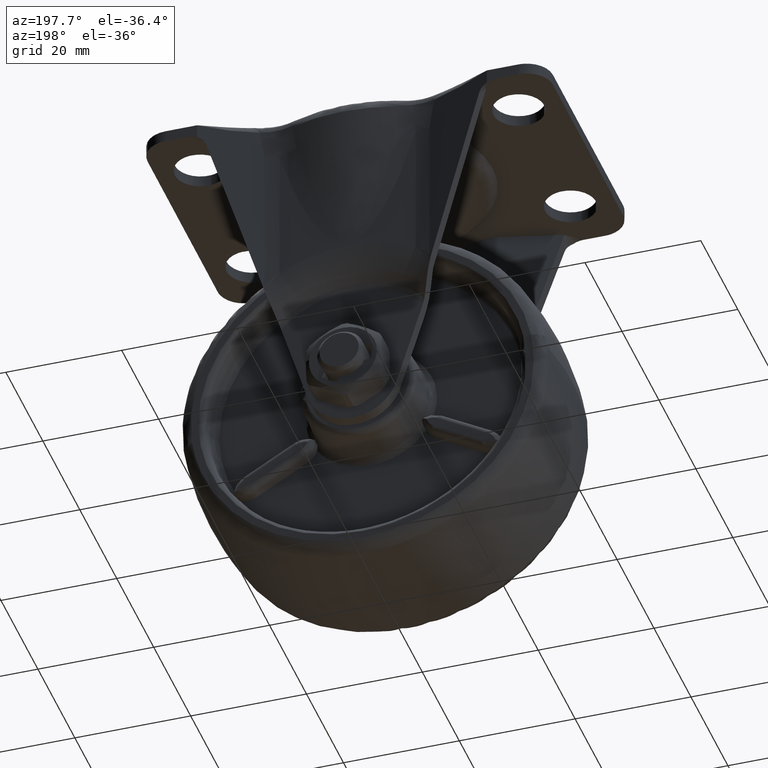
[diagram: clean part render]
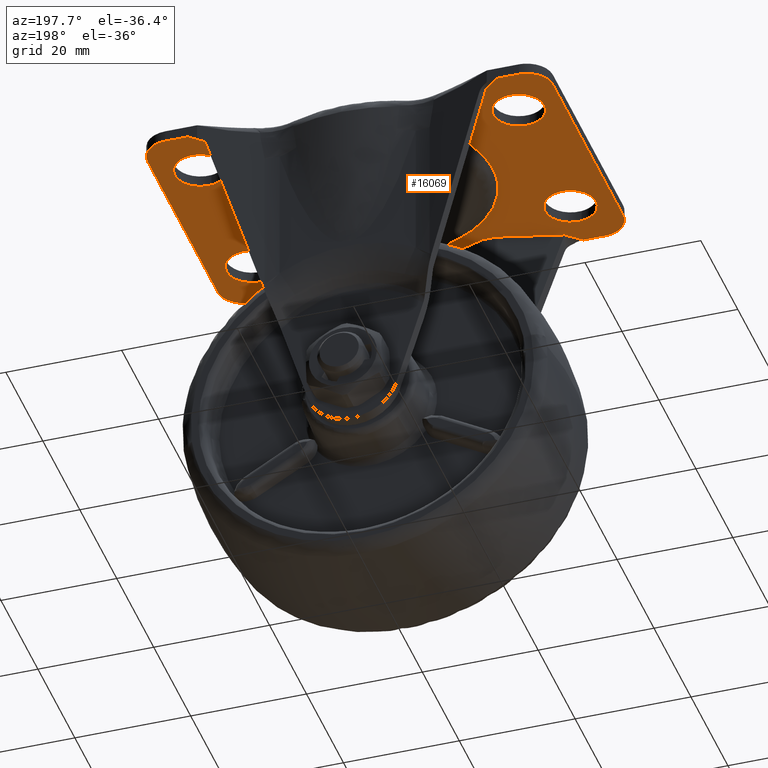
[diagram: same view with one face highlighted and labeled with its STEP entity id]
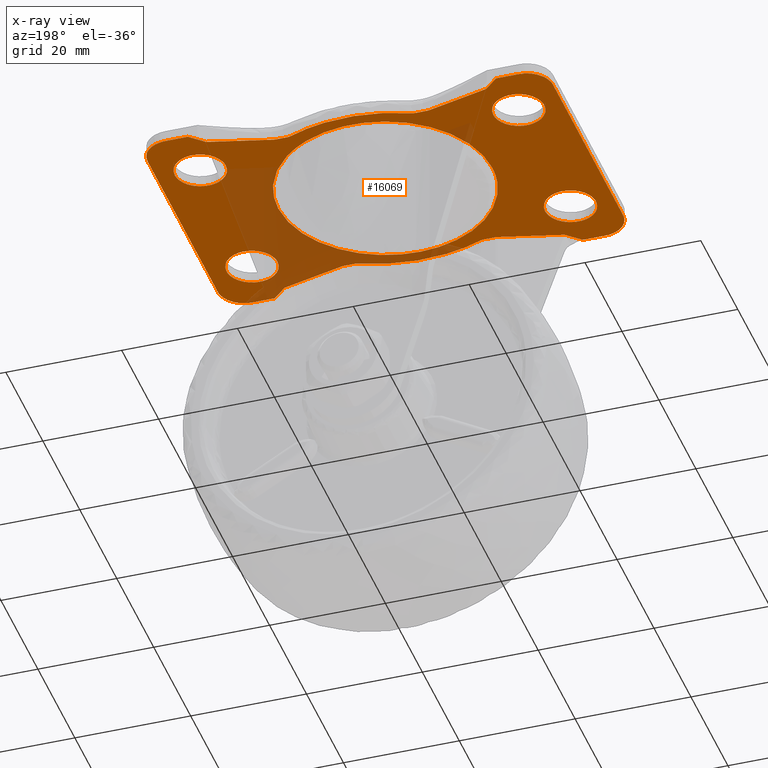
[diagram: x-ray of the same camera — body ghosted, the highlighted face saturated]
A machine part, auxiliary view. The second image highlights one B-rep face of the part: STEP entity #16069.
The next image is the same camera in x-ray: the body ghosted, the highlighted face saturated — about 24% of this face is hidden behind the body in this view.
In plain terms, the highlighted face is a freeform B-spline surface patch.
Its self-contained STEP definition (entity closure, byte-faithful):
#7227=CARTESIAN_POINT('',(-28.019350644347199,9.630757984705339,50.500000000000000));
#7228=VERTEX_POINT('',#7227);
#7229=CARTESIAN_POINT('',(-23.099999900000000,14.0,50.500000000000000));
#7230=VERTEX_POINT('',#7229);
#7231=CARTESIAN_POINT('',(-28.019350644347202,9.630757984705339,50.500000000000000));
#7232=CARTESIAN_POINT('',(-27.760586132445436,9.599999900000000,50.500000000000007));
#7233=CARTESIAN_POINT('',(-27.500000000000000,9.599999900000000,50.500000000000000));
#7234=CARTESIAN_POINT('',(-23.099999900000004,9.599999900000000,50.500000000000000));
#7235=CARTESIAN_POINT('',(-23.099999900000000,14.0,50.500000000000000));
#7243=(BOUNDED_CURVE()B_SPLINE_CURVE(2,(#7231,#7232,#7233,#7234,#7235),.UNSPECIFIED.,.F.,.U.)B_SPLINE_CURVE_WITH_KNOTS((3,2,3),(0.229562473511464,0.250000000000000,0.500000000000000),.UNSPECIFIED.)CURVE()GEOMETRIC_REPRESENTATION_ITEM()RATIONAL_B_SPLINE_CURVE((0.956026754179691,0.976055948328749,1.0,0.707106781186547,1.0))REPRESENTATION_ITEM(''));
#7244=EDGE_CURVE('',#7228,#7230,#7243,.T.);
#7285=CARTESIAN_POINT('',(-27.231386419819021,18.391793212862190,50.500000000000000));
#7286=VERTEX_POINT('',#7285);
#7292=CARTESIAN_POINT('',(-23.099999900000000,14.0,50.500000000000000));
#7293=CARTESIAN_POINT('',(-23.099999900000011,18.139106788223827,50.499999999999993));
#7294=CARTESIAN_POINT('',(-27.231386419819014,18.391793212862186,50.500000000000007));
#7302=(BOUNDED_CURVE()B_SPLINE_CURVE(2,(#7292,#7293,#7294),.UNSPECIFIED.,.F.,.U.)B_SPLINE_CURVE_WITH_KNOTS((3,3),(0.500000000000000,0.739332962232321),.UNSPECIFIED.)CURVE()GEOMETRIC_REPRESENTATION_ITEM()RATIONAL_B_SPLINE_CURVE((1.0,0.719603993294468,0.976072041652527))REPRESENTATION_ITEM(''));
#7303=EDGE_CURVE('',#7230,#7286,#7302,.T.);
#7326=CARTESIAN_POINT('',(-31.900000100000000,14.0,50.500000000000000));
#7327=VERTEX_POINT('',#7326);
#7328=CARTESIAN_POINT('',(-31.900000100000000,14.0,50.500000000000000));
#7329=CARTESIAN_POINT('',(-31.900000100000003,10.092031997093882,50.500000000000007));
#7330=CARTESIAN_POINT('',(-28.019350644347206,9.630757984705339,50.500000000000000));
#7338=(BOUNDED_CURVE()B_SPLINE_CURVE(2,(#7328,#7329,#7330),.UNSPECIFIED.,.F.,.U.)B_SPLINE_CURVE_WITH_KNOTS((3,3),(0.0,0.229562473511464),.UNSPECIFIED.)CURVE()GEOMETRIC_REPRESENTATION_ITEM()RATIONAL_B_SPLINE_CURVE((1.0,0.731050832857798,0.956026754179692))REPRESENTATION_ITEM(''));
#7339=EDGE_CURVE('',#7327,#7228,#7338,.T.);
#7341=CARTESIAN_POINT('',(-27.231386419819014,18.391793212862186,50.499999999999993));
#7342=CARTESIAN_POINT('',(-27.365567838307832,18.400000100000007,50.500000000000000));
#7343=CARTESIAN_POINT('',(-27.500000000000000,18.400000100000000,50.500000000000000));
#7344=CARTESIAN_POINT('',(-31.900000099999996,18.400000100000000,50.500000000000000));
#7345=CARTESIAN_POINT('',(-31.900000100000000,14.0,50.500000000000000));
#7353=(BOUNDED_CURVE()B_SPLINE_CURVE(2,(#7341,#7342,#7343,#7344,#7345),.UNSPECIFIED.,.F.,.U.)B_SPLINE_CURVE_WITH_KNOTS((3,2,3),(0.739332962232322,0.750000000000000,1.0),.UNSPECIFIED.)CURVE()GEOMETRIC_REPRESENTATION_ITEM()RATIONAL_B_SPLINE_CURVE((0.976072041652528,0.987502787892081,1.0,0.707106781186547,1.0))REPRESENTATION_ITEM(''));
#7354=EDGE_CURVE('',#7286,#7327,#7353,.T.);
#7413=CARTESIAN_POINT('',(-28.019350644347199,-18.369242015294660,50.500000000000000));
#7414=VERTEX_POINT('',#7413);
#7415=CARTESIAN_POINT('',(-23.099999900000000,-14.0,50.500000000000000));
#7416=VERTEX_POINT('',#7415);
#7417=CARTESIAN_POINT('',(-28.019350644347202,-18.369242015294663,50.500000000000000));
#7418=CARTESIAN_POINT('',(-27.760586132445436,-18.400000099999996,50.500000000000007));
#7419=CARTESIAN_POINT('',(-27.500000000000000,-18.400000100000000,50.500000000000000));
#7420=CARTESIAN_POINT('',(-23.099999900000004,-18.400000100000000,50.500000000000000));
#7421=CARTESIAN_POINT('',(-23.099999900000000,-14.0,50.500000000000000));
#7429=(BOUNDED_CURVE()B_SPLINE_CURVE(2,(#7417,#7418,#7419,#7420,#7421),.UNSPECIFIED.,.F.,.U.)B_SPLINE_CURVE_WITH_KNOTS((3,2,3),(0.229562473511464,0.250000000000000,0.500000000000000),.UNSPECIFIED.)CURVE()GEOMETRIC_REPRESENTATION_ITEM()RATIONAL_B_SPLINE_CURVE((0.956026754179691,0.976055948328749,1.0,0.707106781186547,1.0))REPRESENTATION_ITEM(''));
#7430=EDGE_CURVE('',#7414,#7416,#7429,.T.);
#7471=CARTESIAN_POINT('',(-27.231386419819021,-9.608206787137814,50.500000000000000));
#7472=VERTEX_POINT('',#7471);
#7478=CARTESIAN_POINT('',(-23.099999900000000,-14.0,50.500000000000000));
#7479=CARTESIAN_POINT('',(-23.099999900000011,-9.860893211776180,50.499999999999993));
#7480=CARTESIAN_POINT('',(-27.231386419819014,-9.608206787137814,50.500000000000007));
#7488=(BOUNDED_CURVE()B_SPLINE_CURVE(2,(#7478,#7479,#7480),.UNSPECIFIED.,.F.,.U.)B_SPLINE_CURVE_WITH_KNOTS((3,3),(0.500000000000000,0.739332962232321),.UNSPECIFIED.)CURVE()GEOMETRIC_REPRESENTATION_ITEM()RATIONAL_B_SPLINE_CURVE((1.0,0.719603993294468,0.976072041652527))REPRESENTATION_ITEM(''));
#7489=EDGE_CURVE('',#7416,#7472,#7488,.T.);
#7512=CARTESIAN_POINT('',(-31.900000100000000,-14.0,50.500000000000000));
#7513=VERTEX_POINT('',#7512);
#7514=CARTESIAN_POINT('',(-31.900000100000000,-14.0,50.500000000000000));
#7515=CARTESIAN_POINT('',(-31.900000100000003,-17.907968002906127,50.500000000000007));
#7516=CARTESIAN_POINT('',(-28.019350644347206,-18.369242015294670,50.500000000000000));
#7524=(BOUNDED_CURVE()B_SPLINE_CURVE(2,(#7514,#7515,#7516),.UNSPECIFIED.,.F.,.U.)B_SPLINE_CURVE_WITH_KNOTS((3,3),(0.0,0.229562473511464),.UNSPECIFIED.)CURVE()GEOMETRIC_REPRESENTATION_ITEM()RATIONAL_B_SPLINE_CURVE((1.0,0.731050832857798,0.956026754179692))REPRESENTATION_ITEM(''));
#7525=EDGE_CURVE('',#7513,#7414,#7524,.T.);
#7527=CARTESIAN_POINT('',(-27.231386419819014,-9.608206787137814,50.499999999999993));
#7528=CARTESIAN_POINT('',(-27.365567838307832,-9.599999900000002,50.500000000000000));
#7529=CARTESIAN_POINT('',(-27.500000000000000,-9.599999900000000,50.500000000000000));
#7530=CARTESIAN_POINT('',(-31.900000099999996,-9.599999900000000,50.500000000000000));
#7531=CARTESIAN_POINT('',(-31.900000100000000,-14.0,50.500000000000000));
#7539=(BOUNDED_CURVE()B_SPLINE_CURVE(2,(#7527,#7528,#7529,#7530,#7531),.UNSPECIFIED.,.F.,.U.)B_SPLINE_CURVE_WITH_KNOTS((3,2,3),(0.739332962232322,0.750000000000000,1.0),.UNSPECIFIED.)CURVE()GEOMETRIC_REPRESENTATION_ITEM()RATIONAL_B_SPLINE_CURVE((0.976072041652528,0.987502787892081,1.0,0.707106781186547,1.0))REPRESENTATION_ITEM(''));
#7540=EDGE_CURVE('',#7472,#7513,#7539,.T.);
#7599=CARTESIAN_POINT('',(26.980649355652801,9.630757984705339,50.500000000000000));
#7600=VERTEX_POINT('',#7599);
#7601=CARTESIAN_POINT('',(31.900000100000000,14.0,50.500000000000000));
#7602=VERTEX_POINT('',#7601);
#7603=CARTESIAN_POINT('',(26.980649355652798,9.630757984705339,50.500000000000007));
#7604=CARTESIAN_POINT('',(27.239413867554568,9.599999900000002,50.500000000000000));
#7605=CARTESIAN_POINT('',(27.500000000000000,9.599999900000000,50.500000000000000));
#7606=CARTESIAN_POINT('',(31.900000099999996,9.599999900000000,50.500000000000000));
#7607=CARTESIAN_POINT('',(31.900000100000000,14.0,50.500000000000000));
#7615=(BOUNDED_CURVE()B_SPLINE_CURVE(2,(#7603,#7604,#7605,#7606,#7607),.UNSPECIFIED.,.F.,.U.)B_SPLINE_CURVE_WITH_KNOTS((3,2,3),(0.229562473511464,0.250000000000000,0.500000000000000),.UNSPECIFIED.)CURVE()GEOMETRIC_REPRESENTATION_ITEM()RATIONAL_B_SPLINE_CURVE((0.956026754179691,0.976055948328749,1.0,0.707106781186547,1.0))REPRESENTATION_ITEM(''));
#7616=EDGE_CURVE('',#7600,#7602,#7615,.T.);
#7657=CARTESIAN_POINT('',(27.768613580180990,18.391793212862190,50.500000000000000));
#7658=VERTEX_POINT('',#7657);
#7664=CARTESIAN_POINT('',(31.900000100000000,14.0,50.500000000000000));
#7665=CARTESIAN_POINT('',(31.900000099999993,18.139106788223827,50.499999999999993));
#7666=CARTESIAN_POINT('',(27.768613580180990,18.391793212862186,50.500000000000007));
#7674=(BOUNDED_CURVE()B_SPLINE_CURVE(2,(#7664,#7665,#7666),.UNSPECIFIED.,.F.,.U.)B_SPLINE_CURVE_WITH_KNOTS((3,3),(0.500000000000000,0.739332962232321),.UNSPECIFIED.)CURVE()GEOMETRIC_REPRESENTATION_ITEM()RATIONAL_B_SPLINE_CURVE((1.0,0.719603993294468,0.976072041652527))REPRESENTATION_ITEM(''));
#7675=EDGE_CURVE('',#7602,#7658,#7674,.T.);
#7698=CARTESIAN_POINT('',(23.099999900000000,14.0,50.500000000000000));
#7699=VERTEX_POINT('',#7698);
#7700=CARTESIAN_POINT('',(23.099999900000000,14.0,50.500000000000000));
#7701=CARTESIAN_POINT('',(23.099999900000004,10.092031997093889,50.500000000000014));
#7702=CARTESIAN_POINT('',(26.980649355652794,9.630757984705339,50.500000000000000));
#7710=(BOUNDED_CURVE()B_SPLINE_CURVE(2,(#7700,#7701,#7702),.UNSPECIFIED.,.F.,.U.)B_SPLINE_CURVE_WITH_KNOTS((3,3),(0.0,0.229562473511463),.UNSPECIFIED.)CURVE()GEOMETRIC_REPRESENTATION_ITEM()RATIONAL_B_SPLINE_CURVE((1.0,0.731050832857798,0.956026754179691))REPRESENTATION_ITEM(''));
#7711=EDGE_CURVE('',#7699,#7600,#7710,.T.);
#7713=CARTESIAN_POINT('',(27.768613580180990,18.391793212862183,50.500000000000000));
#7714=CARTESIAN_POINT('',(27.634432161692168,18.400000100000000,50.500000000000000));
#7715=CARTESIAN_POINT('',(27.500000000000000,18.400000100000000,50.500000000000000));
#7716=CARTESIAN_POINT('',(23.099999900000004,18.400000100000000,50.500000000000000));
#7717=CARTESIAN_POINT('',(23.099999900000000,14.0,50.500000000000000));
#7725=(BOUNDED_CURVE()B_SPLINE_CURVE(2,(#7713,#7714,#7715,#7716,#7717),.UNSPECIFIED.,.F.,.U.)B_SPLINE_CURVE_WITH_KNOTS((3,2,3),(0.739332962232322,0.750000000000000,1.0),.UNSPECIFIED.)CURVE()GEOMETRIC_REPRESENTATION_ITEM()RATIONAL_B_SPLINE_CURVE((0.976072041652528,0.987502787892081,1.0,0.707106781186547,1.0))REPRESENTATION_ITEM(''));
#7726=EDGE_CURVE('',#7658,#7699,#7725,.T.);
#7785=CARTESIAN_POINT('',(26.980649355652801,-18.369242015294660,50.500000000000000));
#7786=VERTEX_POINT('',#7785);
#7787=CARTESIAN_POINT('',(31.900000100000000,-14.0,50.500000000000000));
#7788=VERTEX_POINT('',#7787);
#7789=CARTESIAN_POINT('',(26.980649355652798,-18.369242015294667,50.500000000000007));
#7790=CARTESIAN_POINT('',(27.239413867554568,-18.400000099999996,50.500000000000000));
#7791=CARTESIAN_POINT('',(27.500000000000000,-18.400000100000000,50.500000000000000));
#7792=CARTESIAN_POINT('',(31.900000099999996,-18.400000100000000,50.500000000000000));
#7793=CARTESIAN_POINT('',(31.900000100000000,-14.0,50.500000000000000));
#7801=(BOUNDED_CURVE()B_SPLINE_CURVE(2,(#7789,#7790,#7791,#7792,#7793),.UNSPECIFIED.,.F.,.U.)B_SPLINE_CURVE_WITH_KNOTS((3,2,3),(0.229562473511464,0.250000000000000,0.500000000000000),.UNSPECIFIED.)CURVE()GEOMETRIC_REPRESENTATION_ITEM()RATIONAL_B_SPLINE_CURVE((0.956026754179691,0.976055948328749,1.0,0.707106781186547,1.0))REPRESENTATION_ITEM(''));
#7802=EDGE_CURVE('',#7786,#7788,#7801,.T.);
#7843=CARTESIAN_POINT('',(27.768613580180990,-9.608206787137814,50.500000000000000));
#7844=VERTEX_POINT('',#7843);
#7850=CARTESIAN_POINT('',(31.900000100000000,-14.0,50.500000000000000));
#7851=CARTESIAN_POINT('',(31.900000099999993,-9.860893211776180,50.499999999999993));
#7852=CARTESIAN_POINT('',(27.768613580180990,-9.608206787137814,50.500000000000007));
#7860=(BOUNDED_CURVE()B_SPLINE_CURVE(2,(#7850,#7851,#7852),.UNSPECIFIED.,.F.,.U.)B_SPLINE_CURVE_WITH_KNOTS((3,3),(0.500000000000000,0.739332962232321),.UNSPECIFIED.)CURVE()GEOMETRIC_REPRESENTATION_ITEM()RATIONAL_B_SPLINE_CURVE((1.0,0.719603993294468,0.976072041652527))REPRESENTATION_ITEM(''));
#7861=EDGE_CURVE('',#7788,#7844,#7860,.T.);
#7884=CARTESIAN_POINT('',(23.099999900000000,-14.0,50.500000000000000));
#7885=VERTEX_POINT('',#7884);
#7886=CARTESIAN_POINT('',(23.099999900000000,-14.0,50.500000000000000));
#7887=CARTESIAN_POINT('',(23.099999900000004,-17.907968002906120,50.500000000000014));
#7888=CARTESIAN_POINT('',(26.980649355652794,-18.369242015294663,50.500000000000000));
#7896=(BOUNDED_CURVE()B_SPLINE_CURVE(2,(#7886,#7887,#7888),.UNSPECIFIED.,.F.,.U.)B_SPLINE_CURVE_WITH_KNOTS((3,3),(0.0,0.229562473511463),.UNSPECIFIED.)CURVE()GEOMETRIC_REPRESENTATION_ITEM()RATIONAL_B_SPLINE_CURVE((1.0,0.731050832857798,0.956026754179691))REPRESENTATION_ITEM(''));
#7897=EDGE_CURVE('',#7885,#7786,#7896,.T.);
#7899=CARTESIAN_POINT('',(27.768613580180993,-9.608206787137814,50.500000000000000));
#7900=CARTESIAN_POINT('',(27.634432161692175,-9.599999900000000,50.500000000000007));
#7901=CARTESIAN_POINT('',(27.500000000000000,-9.599999900000000,50.500000000000000));
#7902=CARTESIAN_POINT('',(23.099999900000004,-9.599999900000000,50.500000000000000));
#7903=CARTESIAN_POINT('',(23.099999900000000,-14.0,50.500000000000000));
#7911=(BOUNDED_CURVE()B_SPLINE_CURVE(2,(#7899,#7900,#7901,#7902,#7903),.UNSPECIFIED.,.F.,.U.)B_SPLINE_CURVE_WITH_KNOTS((3,2,3),(0.739332962232322,0.750000000000000,1.0),.UNSPECIFIED.)CURVE()GEOMETRIC_REPRESENTATION_ITEM()RATIONAL_B_SPLINE_CURVE((0.976072041652528,0.987502787892081,1.0,0.707106781186547,1.0))REPRESENTATION_ITEM(''));
#7912=EDGE_CURVE('',#7844,#7885,#7911,.T.);
#9151=CARTESIAN_POINT('',(12.699478415290200,13.452629779234909,50.499999999912767));
#9152=VERTEX_POINT('',#9151);
#9166=CARTESIAN_POINT('',(18.500000000000000,-3.549170E-015,50.500000000000000));
#9167=VERTEX_POINT('',#9166);
#9168=CARTESIAN_POINT('',(12.699478415290196,13.452629779234904,50.499999999912774));
#9169=CARTESIAN_POINT('',(18.500000000000004,7.976852933361195,50.500000000000007));
#9170=CARTESIAN_POINT('',(18.500000000000000,-3.549170E-015,50.500000000000000));
#9178=(BOUNDED_CURVE()B_SPLINE_CURVE(2,(#9168,#9169,#9170),.UNSPECIFIED.,.F.,.U.)B_SPLINE_CURVE_WITH_KNOTS((3,3),(0.370655485560253,0.500000000000000),.UNSPECIFIED.)CURVE()GEOMETRIC_REPRESENTATION_ITEM()RATIONAL_B_SPLINE_CURVE((0.853730296276505,0.848463475319518,1.0))REPRESENTATION_ITEM(''));
#9179=EDGE_CURVE('',#9152,#9167,#9178,.T.);
#9181=CARTESIAN_POINT('',(-18.500000000000000,-3.549170E-015,50.500000000000000));
#9182=VERTEX_POINT('',#9181);
#9183=CARTESIAN_POINT('',(18.500000000000000,-3.549170E-015,50.500000000000000));
#9184=CARTESIAN_POINT('',(18.500000000000000,-18.500000000000000,50.499999999999993));
#9185=CARTESIAN_POINT('',(0.0,-18.500000000000000,50.500000000000000));
#9186=CARTESIAN_POINT('',(-18.500000000000000,-18.500000000000000,50.499999999999993));
#9187=CARTESIAN_POINT('',(-18.500000000000000,-3.549170E-015,50.500000000000000));
#9195=(BOUNDED_CURVE()B_SPLINE_CURVE(2,(#9183,#9184,#9185,#9186,#9187),.UNSPECIFIED.,.F.,.U.)B_SPLINE_CURVE_WITH_KNOTS((3,2,3),(0.500000000000000,0.750000000000000,1.0),.UNSPECIFIED.)CURVE()GEOMETRIC_REPRESENTATION_ITEM()RATIONAL_B_SPLINE_CURVE((1.0,0.707106781186548,1.0,0.707106781186548,1.0))REPRESENTATION_ITEM(''));
#9196=EDGE_CURVE('',#9167,#9182,#9195,.T.);
#9198=CARTESIAN_POINT('',(-14.828989219849181,11.061242186404201,50.499999999592490));
#9199=VERTEX_POINT('',#9198);
#9200=CARTESIAN_POINT('',(-18.500000000000000,-3.549170E-015,50.500000000000000));
#9201=CARTESIAN_POINT('',(-18.500000000000004,6.139789571806519,50.500000000000000));
#9202=CARTESIAN_POINT('',(-14.828989219849179,11.061242186404204,50.499999999592490));
#9210=(BOUNDED_CURVE()B_SPLINE_CURVE(2,(#9200,#9201,#9202),.UNSPECIFIED.,.F.,.U.)B_SPLINE_CURVE_WITH_KNOTS((3,3),(0.0,0.103156604495588),.UNSPECIFIED.)CURVE()GEOMETRIC_REPRESENTATION_ITEM()RATIONAL_B_SPLINE_CURVE((1.0,0.879144520269684,0.858025367928686))REPRESENTATION_ITEM(''));
#9211=EDGE_CURVE('',#9182,#9199,#9210,.T.);
#9300=CARTESIAN_POINT('',(-14.828989219849179,11.061242186404204,50.499999999592490));
#9301=CARTESIAN_POINT('',(-9.280269713959836,18.499999999999996,50.500000000000000));
#9302=CARTESIAN_POINT('',(0.0,18.500000000000000,50.500000000000000));
#9303=CARTESIAN_POINT('',(7.352770407525324,18.500000000000004,50.500000000000000));
#9304=CARTESIAN_POINT('',(12.699478415290196,13.452629779234904,50.499999999912774));
#9312=(BOUNDED_CURVE()B_SPLINE_CURVE(2,(#9300,#9301,#9302,#9303,#9304),.UNSPECIFIED.,.F.,.U.)B_SPLINE_CURVE_WITH_KNOTS((3,2,3),(0.103156604495588,0.250000000000000,0.370655485560254),.UNSPECIFIED.)CURVE()GEOMETRIC_REPRESENTATION_ITEM()RATIONAL_B_SPLINE_CURVE((0.858025367928686,0.827962260916863,1.0,0.858643305867029,0.853730296276505))REPRESENTATION_ITEM(''));
#9313=EDGE_CURVE('',#9199,#9152,#9312,.T.);
#9411=CARTESIAN_POINT('',(-10.324252689177060,-18.575363279753098,50.500000000000000));
#9412=VERTEX_POINT('',#9411);
#9413=CARTESIAN_POINT('',(-11.147902669042900,-18.406240285580949,50.500000000000000));
#9414=VERTEX_POINT('',#9413);
#9415=CARTESIAN_POINT('',(-10.324252689177060,-18.575363279753098,50.500000000000000));
#9416=CARTESIAN_POINT('',(-10.454943470160620,-18.519219030960031,50.500000000000007));
#9417=CARTESIAN_POINT('',(-10.589086307833011,-18.477358420331321,50.500000000000007));
#9418=CARTESIAN_POINT('',(-10.795231024361280,-18.434968359082511,50.500000000000007));
#9419=CARTESIAN_POINT('',(-10.864774529348180,-18.424266849894821,50.500000000000007));
#9420=CARTESIAN_POINT('',(-11.005558631860330,-18.409885922387140,50.500000000000007));
#9421=CARTESIAN_POINT('',(-11.076789628579920,-18.406240285580949,50.500000000000007));
#9422=CARTESIAN_POINT('',(-11.147902669042900,-18.406240285580949,50.500000000000000));
#9423=B_SPLINE_CURVE_WITH_KNOTS('',3,(#9415,#9416,#9417,#9418,#9419,#9420,#9421,#9422),.UNSPECIFIED.,.F.,.U.,(4,2,2,4),(0.0,0.500000000000001,0.750000000000001,1.0),.UNSPECIFIED.);
#9424=EDGE_CURVE('',#9412,#9414,#9423,.T.);
#9426=CARTESIAN_POINT('',(10.324252689177060,-18.575363279753098,50.500000000000000));
#9427=VERTEX_POINT('',#9426);
#9441=CARTESIAN_POINT('',(11.147902669042900,-18.406240285580949,50.500000000000000));
#9442=VERTEX_POINT('',#9441);
#9443=CARTESIAN_POINT('',(11.147902669042900,-18.406240285580949,50.500000000000000));
#9444=CARTESIAN_POINT('',(11.005662561606639,-18.406240285580949,50.500000000000021));
#9445=CARTESIAN_POINT('',(10.865865188238191,-18.420577739270211,50.499999999999993));
#9446=CARTESIAN_POINT('',(10.659694103352001,-18.462773510566780,50.500000000000000));
#9447=CARTESIAN_POINT('',(10.591562681261451,-18.480315071115399,50.500000000000000));
#9448=CARTESIAN_POINT('',(10.456519067832181,-18.522554380301671,50.499999999999993));
#9449=CARTESIAN_POINT('',(10.389602791073610,-18.547289131355491,50.499999999999993));
#9450=CARTESIAN_POINT('',(10.324252689177079,-18.575363279753098,50.500000000000000));
#9451=B_SPLINE_CURVE_WITH_KNOTS('',3,(#9443,#9444,#9445,#9446,#9447,#9448,#9449,#9450),.UNSPECIFIED.,.F.,.U.,(4,2,2,4),(0.0,0.500000000000003,0.750000000000001,1.0),.UNSPECIFIED.);
#9452=EDGE_CURVE('',#9442,#9427,#9451,.T.);
#9484=CARTESIAN_POINT('',(-13.020022977027621,-18.406240285580949,50.500000000000000));
#9485=VERTEX_POINT('',#9484);
#9486=CARTESIAN_POINT('',(-13.520108598479640,-18.469770721860151,50.500000000000000));
#9487=VERTEX_POINT('',#9486);
#9488=CARTESIAN_POINT('',(-13.020022977027621,-18.406240285580949,50.500000000000000));
#9489=CARTESIAN_POINT('',(-13.274101213049507,-18.406240285580957,50.500000000000000));
#9490=CARTESIAN_POINT('',(-13.520108598479631,-18.469770721860169,50.500000000000000));
#9498=(BOUNDED_CURVE()B_SPLINE_CURVE(2,(#9488,#9489,#9490),.UNSPECIFIED.,.F.,.U.)CURVE()GEOMETRIC_REPRESENTATION_ITEM()QUASI_UNIFORM_CURVE()RATIONAL_B_SPLINE_CURVE((1.0,0.992026910386102,1.0))REPRESENTATION_ITEM(''));
#9499=EDGE_CURVE('',#9485,#9487,#9498,.T.);
#9860=CARTESIAN_POINT('',(13.520108598479640,-18.469770721860151,50.500000000000000));
#9861=VERTEX_POINT('',#9860);
#9862=CARTESIAN_POINT('',(13.020022977027621,-18.406240285580949,50.500000000000000));
#9863=VERTEX_POINT('',#9862);
#9864=CARTESIAN_POINT('',(13.520108598479631,-18.469770721860169,50.500000000000000));
#9865=CARTESIAN_POINT('',(13.274101213049505,-18.406240285580953,50.500000000000000));
#9866=CARTESIAN_POINT('',(13.020022977027621,-18.406240285580949,50.500000000000000));
#9874=(BOUNDED_CURVE()B_SPLINE_CURVE(2,(#9864,#9865,#9866),.UNSPECIFIED.,.F.,.U.)CURVE()GEOMETRIC_REPRESENTATION_ITEM()QUASI_UNIFORM_CURVE()RATIONAL_B_SPLINE_CURVE((1.0,0.992026910386102,1.0))REPRESENTATION_ITEM(''));
#9875=EDGE_CURVE('',#9861,#9863,#9874,.T.);
#10198=CARTESIAN_POINT('',(10.324252689177101,18.575363279753049,50.500000000000000));
#10199=VERTEX_POINT('',#10198);
#10200=CARTESIAN_POINT('',(11.147902669042940,18.406240285580949,50.500000000000000));
#10201=VERTEX_POINT('',#10200);
#10202=CARTESIAN_POINT('',(10.324252689177060,18.575363279753098,50.500000000000000));
#10203=CARTESIAN_POINT('',(10.454943470160609,18.519219030960020,50.500000000000000));
#10204=CARTESIAN_POINT('',(10.589086307833041,18.477358420331282,50.499999999999993));
#10205=CARTESIAN_POINT('',(10.795231024361319,18.434968359082468,50.500000000000000));
#10206=CARTESIAN_POINT('',(10.864774529348219,18.424266849894789,50.500000000000000));
#10207=CARTESIAN_POINT('',(11.005558631860380,18.409885922387090,50.499999999999993));
#10208=CARTESIAN_POINT('',(11.076789628579959,18.406240285580900,50.500000000000000));
#10209=CARTESIAN_POINT('',(11.147902669042940,18.406240285580900,50.500000000000000));
#10210=B_SPLINE_CURVE_WITH_KNOTS('',3,(#10202,#10203,#10204,#10205,#10206,#10207,#10208,#10209),.UNSPECIFIED.,.F.,.U.,(4,2,2,4),(0.0,0.500000000000000,0.750000000000000,1.0),.UNSPECIFIED.);
#10211=EDGE_CURVE('',#10199,#10201,#10210,.T.);
#10213=CARTESIAN_POINT('',(-10.324252689177101,18.575363279753049,50.500000000000000));
#10214=VERTEX_POINT('',#10213);
#10228=CARTESIAN_POINT('',(-11.147902669042940,18.406240285580949,50.500000000000000));
#10229=VERTEX_POINT('',#10228);
#10230=CARTESIAN_POINT('',(-11.147902669042940,18.406240285580949,50.500000000000000));
#10231=CARTESIAN_POINT('',(-11.005662561606680,18.406240285580960,50.500000000000007));
#10232=CARTESIAN_POINT('',(-10.865865188238230,18.420577739270179,50.500000000000007));
#10233=CARTESIAN_POINT('',(-10.659694103352040,18.462773510566759,50.500000000000007));
#10234=CARTESIAN_POINT('',(-10.591562681261490,18.480315071115371,50.500000000000007));
#10235=CARTESIAN_POINT('',(-10.456519067832231,18.522554380301649,50.500000000000007));
#10236=CARTESIAN_POINT('',(-10.389602791073610,18.547289131355502,50.500000000000007));
#10237=CARTESIAN_POINT('',(-10.324252689177079,18.575363279753098,50.500000000000000));
#10238=B_SPLINE_CURVE_WITH_KNOTS('',3,(#10230,#10231,#10232,#10233,#10234,#10235,#10236,#10237),.UNSPECIFIED.,.F.,.U.,(4,2,2,4),(0.0,0.500000000000001,0.750000000000001,1.0),.UNSPECIFIED.);
#10239=EDGE_CURVE('',#10229,#10214,#10238,.T.);
#10441=CARTESIAN_POINT('',(13.020022977027599,18.406240285580949,50.500000000000000));
#10442=VERTEX_POINT('',#10441);
#10443=CARTESIAN_POINT('',(13.520108598479620,18.469770721860151,50.500000000000000));
#10444=VERTEX_POINT('',#10443);
#10445=CARTESIAN_POINT('',(13.020022977027599,18.406240285580949,50.500000000000000));
#10446=CARTESIAN_POINT('',(13.274101213049486,18.406240285580953,50.500000000000000));
#10447=CARTESIAN_POINT('',(13.520108598479609,18.469770721860169,50.500000000000000));
#10455=(BOUNDED_CURVE()B_SPLINE_CURVE(2,(#10445,#10446,#10447),.UNSPECIFIED.,.F.,.U.)CURVE()GEOMETRIC_REPRESENTATION_ITEM()QUASI_UNIFORM_CURVE()RATIONAL_B_SPLINE_CURVE((1.0,0.992026910386102,1.0))REPRESENTATION_ITEM(''));
#10456=EDGE_CURVE('',#10442,#10444,#10455,.T.);
#10647=CARTESIAN_POINT('',(-13.520108598479620,18.469770721860151,50.500000000000000));
#10648=VERTEX_POINT('',#10647);
#10649=CARTESIAN_POINT('',(-13.020022977027599,18.406240285580949,50.500000000000000));
#10650=VERTEX_POINT('',#10649);
#10651=CARTESIAN_POINT('',(-13.520108598479620,18.469770721860169,50.500000000000000));
#10652=CARTESIAN_POINT('',(-13.274101213049486,18.406240285580953,50.500000000000000));
#10653=CARTESIAN_POINT('',(-13.020022977027599,18.406240285580949,50.500000000000000));
#10661=(BOUNDED_CURVE()B_SPLINE_CURVE(2,(#10651,#10652,#10653),.UNSPECIFIED.,.F.,.U.)CURVE()GEOMETRIC_REPRESENTATION_ITEM()QUASI_UNIFORM_CURVE()RATIONAL_B_SPLINE_CURVE((1.0,0.992026910386102,1.0))REPRESENTATION_ITEM(''));
#10662=EDGE_CURVE('',#10648,#10650,#10661,.T.);
#14136=CARTESIAN_POINT('',(-24.168787795165301,21.219750093333349,50.500000000000000));
#14137=VERTEX_POINT('',#14136);
#14145=CARTESIAN_POINT('',(-25.392797826231220,22.359875046666659,50.500000000000000));
#14146=VERTEX_POINT('',#14145);
#14147=CARTESIAN_POINT('',(-25.392797826231210,22.359875046666659,50.500000000000000));
#14148=CARTESIAN_POINT('',(-24.984794482542579,21.979833395555541,50.500000000000000));
#14149=CARTESIAN_POINT('',(-24.576791138853949,21.599791744444421,50.500000000000000));
#14150=CARTESIAN_POINT('',(-24.168787795165301,21.219750093333300,50.500000000000000));
#14151=B_SPLINE_CURVE_WITH_KNOTS('',3,(#14147,#14148,#14149,#14150),.UNSPECIFIED.,.F.,.U.,(4,4),(0.833333333333332,1.0),.UNSPECIFIED.);
#14152=EDGE_CURVE('',#14146,#14137,#14151,.T.);
#14154=CARTESIAN_POINT('',(-26.616807857297150,23.500000000000000,50.500000000000000));
#14155=VERTEX_POINT('',#14154);
#14156=CARTESIAN_POINT('',(-26.616807857297140,23.500000000000011,50.500000000000000));
#14157=CARTESIAN_POINT('',(-26.539998836418189,23.428454931640619,50.500000000000000));
#14158=CARTESIAN_POINT('',(-26.463189815539248,23.356909863281238,50.500000000000000));
#14159=CARTESIAN_POINT('',(-26.386380794660301,23.285364794921851,50.500000000000000));
#14160=CARTESIAN_POINT('',(-26.055186471850590,22.976868212170121,50.500000000000000));
#14161=CARTESIAN_POINT('',(-25.723992149040900,22.668371629418392,50.500000000000000));
#14162=CARTESIAN_POINT('',(-25.392797826231210,22.359875046666659,50.500000000000000));
#14163=B_SPLINE_CURVE_WITH_KNOTS('',3,(#14156,#14157,#14158,#14159,#14160,#14161,#14162),.UNSPECIFIED.,.F.,.U.,(4,3,4),(0.666666666666663,0.698042643549818,0.833333333333332),.UNSPECIFIED.);
#14164=EDGE_CURVE('',#14155,#14146,#14163,.T.);
#14211=CARTESIAN_POINT('',(-25.392797826231369,-22.359875046666730,50.499999999999993));
#14212=VERTEX_POINT('',#14211);
#14213=CARTESIAN_POINT('',(-26.616807857297399,-23.500000000000000,50.500000000000000));
#14214=VERTEX_POINT('',#14213);
#14215=CARTESIAN_POINT('',(-25.392797826231359,-22.359875046666730,50.500000000000000));
#14216=CARTESIAN_POINT('',(-25.723992149040999,-22.668371629418349,50.500000000000000));
#14217=CARTESIAN_POINT('',(-26.055186471850650,-22.976868212169979,50.500000000000000));
#14218=CARTESIAN_POINT('',(-26.386380794660301,-23.285364794921598,50.500000000000000));
#14219=CARTESIAN_POINT('',(-26.463189815539341,-23.356909863281071,50.500000000000000));
#14220=CARTESIAN_POINT('',(-26.539998836418391,-23.428454931640541,50.500000000000000));
#14221=CARTESIAN_POINT('',(-26.616807857297431,-23.500000000000011,50.500000000000000));
#14222=B_SPLINE_CURVE_WITH_KNOTS('',3,(#14215,#14216,#14217,#14218,#14219,#14220,#14221),.UNSPECIFIED.,.F.,.U.,(4,3,4),(0.166666666666670,0.301957356450148,0.333333333333340),.UNSPECIFIED.);
#14223=EDGE_CURVE('',#14212,#14214,#14222,.T.);
#14225=CARTESIAN_POINT('',(-24.168787795165301,-21.219750093333399,50.500000000000000));
#14226=VERTEX_POINT('',#14225);
#14227=CARTESIAN_POINT('',(-24.168787795165301,-21.219750093333449,50.500000000000000));
#14228=CARTESIAN_POINT('',(-24.576791138853999,-21.599791744444531,50.500000000000000));
#14229=CARTESIAN_POINT('',(-24.984794482542679,-21.979833395555630,50.500000000000000));
#14230=CARTESIAN_POINT('',(-25.392797826231359,-22.359875046666730,50.500000000000000));
#14231=B_SPLINE_CURVE_WITH_KNOTS('',3,(#14227,#14228,#14229,#14230),.UNSPECIFIED.,.F.,.U.,(4,4),(0.0,0.166666666666670),.UNSPECIFIED.);
#14232=EDGE_CURVE('',#14226,#14212,#14231,.T.);
#14331=CARTESIAN_POINT('',(24.168783783484798,-21.219749057332649,50.500000000000000));
#14332=VERTEX_POINT('',#14331);
#14340=CARTESIAN_POINT('',(25.392794484513569,-22.359874528666310,50.500000000000000));
#14341=VERTEX_POINT('',#14340);
#14342=CARTESIAN_POINT('',(25.392794484513569,-22.359874528666310,50.500000000000000));
#14343=CARTESIAN_POINT('',(24.984790917503972,-21.979832704888409,50.500000000000000));
#14344=CARTESIAN_POINT('',(24.576787350494389,-21.599790881110501,50.500000000000000));
#14345=CARTESIAN_POINT('',(24.168783783484798,-21.219749057332599,50.500000000000000));
#14346=B_SPLINE_CURVE_WITH_KNOTS('',3,(#14342,#14343,#14344,#14345),.UNSPECIFIED.,.F.,.U.,(4,4),(0.166666666666670,0.333333333333340),.UNSPECIFIED.);
#14347=EDGE_CURVE('',#14341,#14332,#14346,.T.);
#14349=CARTESIAN_POINT('',(26.616805185542351,-23.500000000000000,50.500000000000000));
#14350=VERTEX_POINT('',#14349);
#14351=CARTESIAN_POINT('',(26.616805185542368,-23.500000000000028,50.500000000000000));
#14352=CARTESIAN_POINT('',(26.539995786777389,-23.428454586307019,50.500000000000000));
#14353=CARTESIAN_POINT('',(26.463186388012421,-23.356909172614010,50.500000000000000));
#14354=CARTESIAN_POINT('',(26.386376989247449,-23.285363758921001,50.500000000000000));
#14355=CARTESIAN_POINT('',(26.055182821002809,-22.976867348836109,50.500000000000000));
#14356=CARTESIAN_POINT('',(25.723988652758180,-22.668370938751210,50.500000000000000));
#14357=CARTESIAN_POINT('',(25.392794484513569,-22.359874528666310,50.500000000000000));
#14358=B_SPLINE_CURVE_WITH_KNOTS('',3,(#14351,#14352,#14353,#14354,#14355,#14356,#14357),.UNSPECIFIED.,.F.,.U.,(4,3,4),(0.0,0.031376114073356,0.166666666666670),.UNSPECIFIED.);
#14359=EDGE_CURVE('',#14350,#14341,#14358,.T.);
#14427=CARTESIAN_POINT('',(26.616805185542201,23.500000000000000,50.500000000000000));
#14428=VERTEX_POINT('',#14427);
#14444=CARTESIAN_POINT('',(25.392794484513480,22.359874528666289,50.499999999999993));
#14445=VERTEX_POINT('',#14444);
#14446=CARTESIAN_POINT('',(25.392794484513480,22.359874528666289,50.500000000000000));
#14447=CARTESIAN_POINT('',(25.723988652758131,22.668370938751220,50.500000000000000));
#14448=CARTESIAN_POINT('',(26.055182821002791,22.976867348836159,50.500000000000000));
#14449=CARTESIAN_POINT('',(26.386376989247449,23.285363758921100,50.500000000000000));
#14450=CARTESIAN_POINT('',(26.463186388012360,23.356909172614060,50.500000000000000));
#14451=CARTESIAN_POINT('',(26.539995786777279,23.428454586307030,50.500000000000000));
#14452=CARTESIAN_POINT('',(26.616805185542201,23.499999999999989,50.500000000000000));
#14453=B_SPLINE_CURVE_WITH_KNOTS('',3,(#14446,#14447,#14448,#14449,#14450,#14451,#14452),.UNSPECIFIED.,.F.,.U.,(4,3,4),(0.833333333333333,0.968623885926665,1.0),.UNSPECIFIED.);
#14454=EDGE_CURVE('',#14445,#14428,#14453,.T.);
#14456=CARTESIAN_POINT('',(24.168783783484798,21.219749057332649,50.500000000000000));
#14457=VERTEX_POINT('',#14456);
#14458=CARTESIAN_POINT('',(24.168783783484798,21.219749057332599,50.500000000000000));
#14459=CARTESIAN_POINT('',(24.576787350494360,21.599790881110511,50.500000000000000));
#14460=CARTESIAN_POINT('',(24.984790917503911,21.979832704888398,50.500000000000000));
#14461=CARTESIAN_POINT('',(25.392794484513480,22.359874528666289,50.500000000000000));
#14462=B_SPLINE_CURVE_WITH_KNOTS('',3,(#14458,#14459,#14460,#14461),.UNSPECIFIED.,.F.,.U.,(4,4),(0.666666666666665,0.833333333333333),.UNSPECIFIED.);
#14463=EDGE_CURVE('',#14457,#14445,#14462,.T.);
#15594=CARTESIAN_POINT('',(-24.168787795165301,-21.219750093333399,50.500000000000000));
#15595=CARTESIAN_POINT('',(-13.520108598479640,-18.469770721860151,50.500000000000000));
#15596=QUASI_UNIFORM_CURVE('',1,(#15594,#15595),.UNSPECIFIED.,.F.,.U.);
#15597=EDGE_CURVE('',#14226,#9487,#15596,.T.);
#15621=CARTESIAN_POINT('',(13.520108598479640,-18.469770721860151,50.500000000000000));
#15622=CARTESIAN_POINT('',(24.168783783484798,-21.219749057332649,50.500000000000000));
#15623=QUASI_UNIFORM_CURVE('',1,(#15621,#15622),.UNSPECIFIED.,.F.,.U.);
#15624=EDGE_CURVE('',#9861,#14332,#15623,.T.);
#15641=CARTESIAN_POINT('',(-13.520108598479620,18.469770721860151,50.500000000000000));
#15642=CARTESIAN_POINT('',(-24.168787795165301,21.219750093333349,50.500000000000000));
#15643=QUASI_UNIFORM_CURVE('',1,(#15641,#15642),.UNSPECIFIED.,.F.,.U.);
#15644=EDGE_CURVE('',#10648,#14137,#15643,.T.);
#15661=CARTESIAN_POINT('',(24.168783783484798,21.219749057332649,50.500000000000000));
#15662=CARTESIAN_POINT('',(13.520108598479620,18.469770721860151,50.500000000000000));
#15663=QUASI_UNIFORM_CURVE('',1,(#15661,#15662),.UNSPECIFIED.,.F.,.U.);
#15664=EDGE_CURVE('',#14457,#10444,#15663,.T.);
#15683=CARTESIAN_POINT('',(-10.324252689177101,18.575363279753081,50.500000000000000));
#15684=CARTESIAN_POINT('',(3.054507E-014,23.010621889590798,50.500000000000007));
#15685=CARTESIAN_POINT('',(10.324252689177150,18.575363279753059,50.500000000000000));
#15693=(BOUNDED_CURVE()B_SPLINE_CURVE(2,(#15683,#15684,#15685),.UNSPECIFIED.,.F.,.U.)CURVE()GEOMETRIC_REPRESENTATION_ITEM()QUASI_UNIFORM_CURVE()RATIONAL_B_SPLINE_CURVE((1.0,0.919423541255545,1.0))REPRESENTATION_ITEM(''));
#15694=EDGE_CURVE('',#10214,#10199,#15693,.T.);
#15714=CARTESIAN_POINT('',(10.324252689177049,-18.575363279753098,50.500000000000000));
#15715=CARTESIAN_POINT('',(9.728389E-015,-23.010621889590759,50.500000000000000));
#15716=CARTESIAN_POINT('',(-10.324252689177040,-18.575363279753098,50.500000000000000));
#15724=(BOUNDED_CURVE()B_SPLINE_CURVE(2,(#15714,#15715,#15716),.UNSPECIFIED.,.F.,.U.)CURVE()GEOMETRIC_REPRESENTATION_ITEM()QUASI_UNIFORM_CURVE()RATIONAL_B_SPLINE_CURVE((1.0,0.919423541255546,1.0))REPRESENTATION_ITEM(''));
#15725=EDGE_CURVE('',#9427,#9412,#15724,.T.);
#15736=CARTESIAN_POINT('',(11.147902669042940,18.406240285580949,50.500000000000000));
#15737=CARTESIAN_POINT('',(13.020022977027599,18.406240285580949,50.500000000000000));
#15738=QUASI_UNIFORM_CURVE('',1,(#15736,#15737),.UNSPECIFIED.,.F.,.U.);
#15739=EDGE_CURVE('',#10201,#10442,#15738,.T.);
#15742=CARTESIAN_POINT('',(-13.020022977027599,18.406240285580949,50.500000000000000));
#15743=CARTESIAN_POINT('',(-11.147902669042940,18.406240285580949,50.500000000000000));
#15744=QUASI_UNIFORM_CURVE('',1,(#15742,#15743),.UNSPECIFIED.,.F.,.U.);
#15745=EDGE_CURVE('',#10650,#10229,#15744,.T.);
#15758=CARTESIAN_POINT('',(-11.147902669042900,-18.406240285580949,50.500000000000000));
#15759=CARTESIAN_POINT('',(-13.020022977027621,-18.406240285580949,50.500000000000000));
#15760=QUASI_UNIFORM_CURVE('',1,(#15758,#15759),.UNSPECIFIED.,.F.,.U.);
#15761=EDGE_CURVE('',#9414,#9485,#15760,.T.);
#15764=CARTESIAN_POINT('',(13.020022977027621,-18.406240285580949,50.500000000000000));
#15765=CARTESIAN_POINT('',(11.147902669042900,-18.406240285580949,50.500000000000000));
#15766=QUASI_UNIFORM_CURVE('',1,(#15764,#15765),.UNSPECIFIED.,.F.,.U.);
#15767=EDGE_CURVE('',#9863,#9442,#15766,.T.);
#15908=CARTESIAN_POINT('',(-38.496499864326417,-25.847649908904881,50.500000000000000));
#15909=CARTESIAN_POINT('',(38.496501741872727,-25.847649908904881,50.500000000000000));
#15910=CARTESIAN_POINT('',(-38.496499864326417,25.847651169543120,50.500000000000000));
#15911=CARTESIAN_POINT('',(38.496501741872727,25.847651169543120,50.500000000000000));
#15912=B_SPLINE_SURFACE_WITH_KNOTS('',1,1,((#15908,#15910),(#15909,#15911)),.UNSPECIFIED.,.F.,.F.,.U.,(2,2),(2,2),(0.0,76.993001606199158),(0.0,51.695301078447997),.UNSPECIFIED.);
#15913=ORIENTED_EDGE('',*,*,#15664,.F.);
#15914=ORIENTED_EDGE('',*,*,#14463,.T.);
#15915=ORIENTED_EDGE('',*,*,#14454,.T.);
#15916=CARTESIAN_POINT('',(30.500000000000000,23.500000000000000,50.500000000000000));
#15917=VERTEX_POINT('',#15916);
#15918=CARTESIAN_POINT('',(30.500000000000000,23.500000000000000,50.500000000000000));
#15919=CARTESIAN_POINT('',(26.616805185542201,23.500000000000000,50.500000000000000));
#15920=QUASI_UNIFORM_CURVE('',1,(#15918,#15919),.UNSPECIFIED.,.F.,.U.);
#15921=EDGE_CURVE('',#15917,#14428,#15920,.T.);
#15922=ORIENTED_EDGE('',*,*,#15921,.F.);
#15923=CARTESIAN_POINT('',(35.0,19.0,50.500000000000000));
#15924=VERTEX_POINT('',#15923);
#15925=CARTESIAN_POINT('',(34.999999999999993,19.0,50.500000000000000));
#15926=CARTESIAN_POINT('',(35.0,23.500000000000007,50.500000000000000));
#15927=CARTESIAN_POINT('',(30.500000000000000,23.500000000000000,50.500000000000000));
#15935=(BOUNDED_CURVE()B_SPLINE_CURVE(2,(#15925,#15926,#15927),.UNSPECIFIED.,.F.,.U.)CURVE()GEOMETRIC_REPRESENTATION_ITEM()QUASI_UNIFORM_CURVE()RATIONAL_B_SPLINE_CURVE((1.0,0.707106781186547,1.0))REPRESENTATION_ITEM(''));
#15936=EDGE_CURVE('',#15924,#15917,#15935,.T.);
#15937=ORIENTED_EDGE('',*,*,#15936,.F.);
#15938=CARTESIAN_POINT('',(35.0,-19.0,50.500000000000000));
#15939=VERTEX_POINT('',#15938);
#15940=CARTESIAN_POINT('',(35.0,19.0,50.500000000000000));
#15941=CARTESIAN_POINT('',(35.0,-19.0,50.500000000000000));
#15942=QUASI_UNIFORM_CURVE('',1,(#15940,#15941),.UNSPECIFIED.,.F.,.U.);
#15943=EDGE_CURVE('',#15924,#15939,#15942,.T.);
#15944=ORIENTED_EDGE('',*,*,#15943,.T.);
#15945=CARTESIAN_POINT('',(30.500000000000000,-23.500000000000000,50.500000000000000));
#15946=VERTEX_POINT('',#15945);
#15947=CARTESIAN_POINT('',(30.500000000000000,-23.500000000000000,50.500000000000000));
#15948=CARTESIAN_POINT('',(35.0,-23.500000000000007,50.500000000000000));
#15949=CARTESIAN_POINT('',(34.999999999999993,-19.0,50.500000000000000));
#15957=(BOUNDED_CURVE()B_SPLINE_CURVE(2,(#15947,#15948,#15949),.UNSPECIFIED.,.F.,.U.)CURVE()GEOMETRIC_REPRESENTATION_ITEM()QUASI_UNIFORM_CURVE()RATIONAL_B_SPLINE_CURVE((1.0,0.707106781186547,1.0))REPRESENTATION_ITEM(''));
#15958=EDGE_CURVE('',#15946,#15939,#15957,.T.);
#15959=ORIENTED_EDGE('',*,*,#15958,.F.);
#15960=CARTESIAN_POINT('',(30.500000000000000,-23.500000000000000,50.500000000000000));
#15961=CARTESIAN_POINT('',(26.616805185542351,-23.500000000000000,50.500000000000000));
#15962=QUASI_UNIFORM_CURVE('',1,(#15960,#15961),.UNSPECIFIED.,.F.,.U.);
#15963=EDGE_CURVE('',#15946,#14350,#15962,.T.);
#15964=ORIENTED_EDGE('',*,*,#15963,.T.);
#15965=ORIENTED_EDGE('',*,*,#14359,.T.);
#15966=ORIENTED_EDGE('',*,*,#14347,.T.);
#15967=ORIENTED_EDGE('',*,*,#15624,.F.);
#15968=ORIENTED_EDGE('',*,*,#9875,.T.);
#15969=ORIENTED_EDGE('',*,*,#15767,.T.);
#15970=ORIENTED_EDGE('',*,*,#9452,.T.);
#15971=ORIENTED_EDGE('',*,*,#15725,.T.);
#15972=ORIENTED_EDGE('',*,*,#9424,.T.);
#15973=ORIENTED_EDGE('',*,*,#15761,.T.);
#15974=ORIENTED_EDGE('',*,*,#9499,.T.);
#15975=ORIENTED_EDGE('',*,*,#15597,.F.);
#15976=ORIENTED_EDGE('',*,*,#14232,.T.);
#15977=ORIENTED_EDGE('',*,*,#14223,.T.);
#15978=CARTESIAN_POINT('',(-30.500000000000000,-23.500000000000000,50.500000000000000));
#15979=VERTEX_POINT('',#15978);
#15980=CARTESIAN_POINT('',(-26.616807857297399,-23.500000000000000,50.500000000000000));
#15981=CARTESIAN_POINT('',(-30.500000000000000,-23.500000000000000,50.500000000000000));
#15982=QUASI_UNIFORM_CURVE('',1,(#15980,#15981),.UNSPECIFIED.,.F.,.U.);
#15983=EDGE_CURVE('',#14214,#15979,#15982,.T.);
#15984=ORIENTED_EDGE('',*,*,#15983,.T.);
#15985=CARTESIAN_POINT('',(-35.0,-19.0,50.500000000000000));
#15986=VERTEX_POINT('',#15985);
#15987=CARTESIAN_POINT('',(-34.999999999999993,-19.0,50.500000000000000));
#15988=CARTESIAN_POINT('',(-35.0,-23.500000000000007,50.500000000000000));
#15989=CARTESIAN_POINT('',(-30.500000000000000,-23.500000000000000,50.500000000000000));
#15997=(BOUNDED_CURVE()B_SPLINE_CURVE(2,(#15987,#15988,#15989),.UNSPECIFIED.,.F.,.U.)CURVE()GEOMETRIC_REPRESENTATION_ITEM()QUASI_UNIFORM_CURVE()RATIONAL_B_SPLINE_CURVE((1.0,0.707106781186547,1.0))REPRESENTATION_ITEM(''));
#15998=EDGE_CURVE('',#15986,#15979,#15997,.T.);
#15999=ORIENTED_EDGE('',*,*,#15998,.F.);
#16000=CARTESIAN_POINT('',(-35.0,19.0,50.500000000000000));
#16001=VERTEX_POINT('',#16000);
#16002=CARTESIAN_POINT('',(-35.0,-19.0,50.500000000000000));
#16003=CARTESIAN_POINT('',(-35.0,19.0,50.500000000000000));
#16004=QUASI_UNIFORM_CURVE('',1,(#16002,#16003),.UNSPECIFIED.,.F.,.U.);
#16005=EDGE_CURVE('',#15986,#16001,#16004,.T.);
#16006=ORIENTED_EDGE('',*,*,#16005,.T.);
#16007=CARTESIAN_POINT('',(-30.500000000000000,23.500000000000000,50.500000000000000));
#16008=VERTEX_POINT('',#16007);
#16009=CARTESIAN_POINT('',(-30.500000000000000,23.500000000000000,50.500000000000000));
#16010=CARTESIAN_POINT('',(-35.0,23.500000000000007,50.500000000000000));
#16011=CARTESIAN_POINT('',(-34.999999999999993,19.0,50.500000000000000));
#16019=(BOUNDED_CURVE()B_SPLINE_CURVE(2,(#16009,#16010,#16011),.UNSPECIFIED.,.F.,.U.)CURVE()GEOMETRIC_REPRESENTATION_ITEM()QUASI_UNIFORM_CURVE()RATIONAL_B_SPLINE_CURVE((1.0,0.707106781186547,1.0))REPRESENTATION_ITEM(''));
#16020=EDGE_CURVE('',#16008,#16001,#16019,.T.);
#16021=ORIENTED_EDGE('',*,*,#16020,.F.);
#16022=CARTESIAN_POINT('',(-26.616807857297150,23.500000000000000,50.500000000000000));
#16023=CARTESIAN_POINT('',(-30.500000000000000,23.500000000000000,50.500000000000000));
#16024=QUASI_UNIFORM_CURVE('',1,(#16022,#16023),.UNSPECIFIED.,.F.,.U.);
#16025=EDGE_CURVE('',#14155,#16008,#16024,.T.);
#16026=ORIENTED_EDGE('',*,*,#16025,.F.);
#16027=ORIENTED_EDGE('',*,*,#14164,.T.);
#16028=ORIENTED_EDGE('',*,*,#14152,.T.);
#16029=ORIENTED_EDGE('',*,*,#15644,.F.);
#16030=ORIENTED_EDGE('',*,*,#10662,.T.);
#16031=ORIENTED_EDGE('',*,*,#15745,.T.);
#16032=ORIENTED_EDGE('',*,*,#10239,.T.);
#16033=ORIENTED_EDGE('',*,*,#15694,.T.);
#16034=ORIENTED_EDGE('',*,*,#10211,.T.);
#16035=ORIENTED_EDGE('',*,*,#15739,.T.);
#16036=ORIENTED_EDGE('',*,*,#10456,.T.);
#16037=EDGE_LOOP('',(#15913,#15914,#15915,#15922,#15937,#15944,#15959,#15964,#15965,#15966,#15967,#15968,#15969,#15970,#15971,#15972,#15973,#15974,#15975,#15976,#15977,#15984,#15999,#16006,#16021,#16026,#16027,#16028,#16029,#16030,#16031,#16032,#16033,#16034,#16035,#16036));
#16038=FACE_OUTER_BOUND('',#16037,.T.);
#16039=ORIENTED_EDGE('',*,*,#9196,.F.);
#16040=ORIENTED_EDGE('',*,*,#9179,.F.);
#16041=ORIENTED_EDGE('',*,*,#9313,.F.);
#16042=ORIENTED_EDGE('',*,*,#9211,.F.);
#16043=EDGE_LOOP('',(#16039,#16040,#16041,#16042));
#16044=FACE_BOUND('',#16043,.T.);
#16045=ORIENTED_EDGE('',*,*,#7861,.T.);
#16046=ORIENTED_EDGE('',*,*,#7912,.T.);
#16047=ORIENTED_EDGE('',*,*,#7897,.T.);
#16048=ORIENTED_EDGE('',*,*,#7802,.T.);
#16049=EDGE_LOOP('',(#16045,#16046,#16047,#16048));
#16050=FACE_BOUND('',#16049,.T.);
#16051=ORIENTED_EDGE('',*,*,#7675,.T.);
#16052=ORIENTED_EDGE('',*,*,#7726,.T.);
#16053=ORIENTED_EDGE('',*,*,#7711,.T.);
#16054=ORIENTED_EDGE('',*,*,#7616,.T.);
#16055=EDGE_LOOP('',(#16051,#16052,#16053,#16054));
#16056=FACE_BOUND('',#16055,.T.);
#16057=ORIENTED_EDGE('',*,*,#7489,.T.);
#16058=ORIENTED_EDGE('',*,*,#7540,.T.);
#16059=ORIENTED_EDGE('',*,*,#7525,.T.);
#16060=ORIENTED_EDGE('',*,*,#7430,.T.);
#16061=EDGE_LOOP('',(#16057,#16058,#16059,#16060));
#16062=FACE_BOUND('',#16061,.T.);
#16063=ORIENTED_EDGE('',*,*,#7303,.T.);
#16064=ORIENTED_EDGE('',*,*,#7354,.T.);
#16065=ORIENTED_EDGE('',*,*,#7339,.T.);
#16066=ORIENTED_EDGE('',*,*,#7244,.T.);
#16067=EDGE_LOOP('',(#16063,#16064,#16065,#16066));
#16068=FACE_BOUND('',#16067,.T.);
#16069=ADVANCED_FACE('',(#16038,#16044,#16050,#16056,#16062,#16068),#15912,.F.);